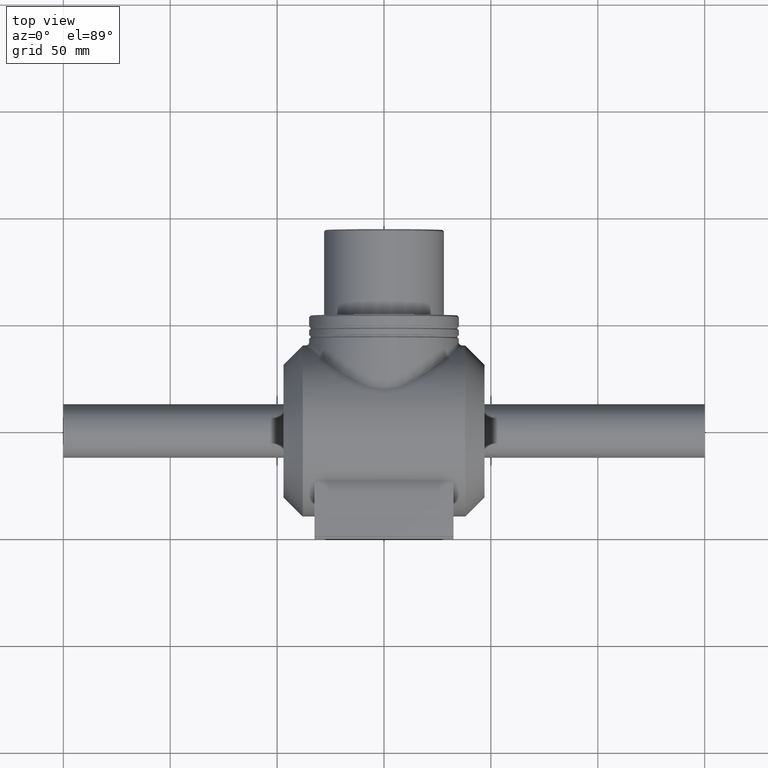
[diagram: clean part render]
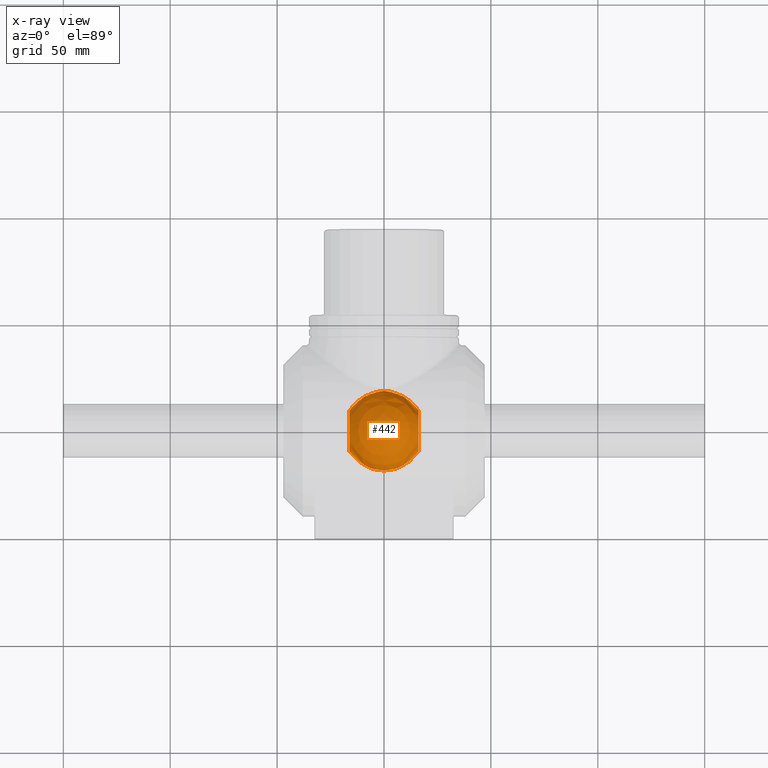
[diagram: x-ray — body ghosted, one internal face saturated and labeled with its STEP entity id]
A machine part, top view, then the same camera in x-ray: the body is ghosted and one INTERNAL B-rep face — a face not visible from any outside direction — is saturated and labeled: STEP entity #442.
In plain terms, the highlighted spherical surface has radius 18.75 mm.
Its self-contained STEP definition (entity closure, byte-faithful):
#15=SPHERICAL_SURFACE('',#499,18.75);
#98=FACE_BOUND('',#193,.T.);
#99=FACE_BOUND('',#194,.T.);
#193=EDGE_LOOP('',(#404));
#194=EDGE_LOOP('',(#405));
#225=CIRCLE('',#498,9.5);
#226=CIRCLE('',#500,9.5);
#264=VERTEX_POINT('',#974);
#265=VERTEX_POINT('',#977);
#312=EDGE_CURVE('',#264,#264,#225,.T.);
#313=EDGE_CURVE('',#265,#265,#226,.T.);
#404=ORIENTED_EDGE('',*,*,#313,.F.);
#405=ORIENTED_EDGE('',*,*,#312,.T.);
#442=ADVANCED_FACE('',(#98,#99),#15,.F.);
#498=AXIS2_PLACEMENT_3D('',#975,#628,#629);
#499=AXIS2_PLACEMENT_3D('',#976,#630,#631);
#500=AXIS2_PLACEMENT_3D('',#978,#632,#633);
#628=DIRECTION('center_axis',(1.,0.,0.));
#629=DIRECTION('ref_axis',(0.,0.,-1.));
#630=DIRECTION('center_axis',(6.12323399573677E-17,0.,1.));
#631=DIRECTION('ref_axis',(1.,0.,0.));
#632=DIRECTION('center_axis',(1.,0.,0.));
#633=DIRECTION('ref_axis',(0.,0.,-1.));
#974=CARTESIAN_POINT('',(16.1651631603272,9.5,0.));
#975=CARTESIAN_POINT('Origin',(16.1651631603272,0.,0.));
#976=CARTESIAN_POINT('Origin',(0.,0.,0.));
#977=CARTESIAN_POINT('',(-16.1651631603272,9.5,0.));
#978=CARTESIAN_POINT('Origin',(-16.1651631603272,0.,0.));